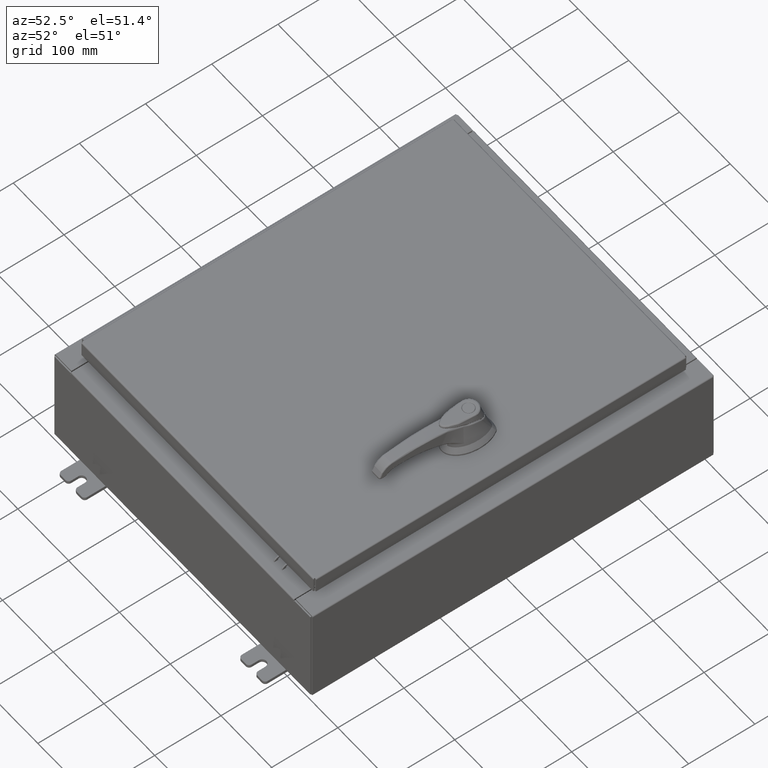
[diagram: clean part render]
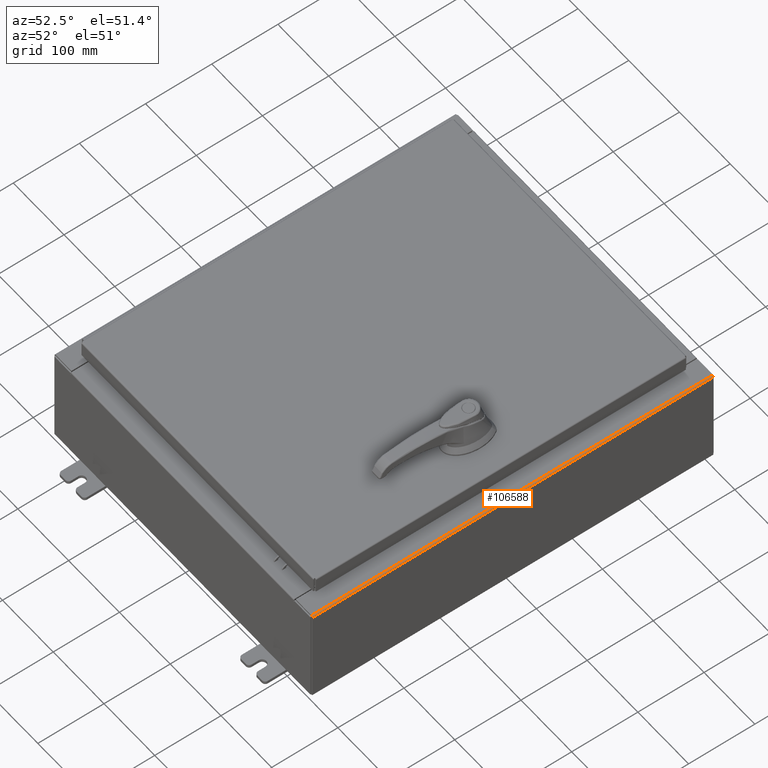
[diagram: same view with one face highlighted and labeled with its STEP entity id]
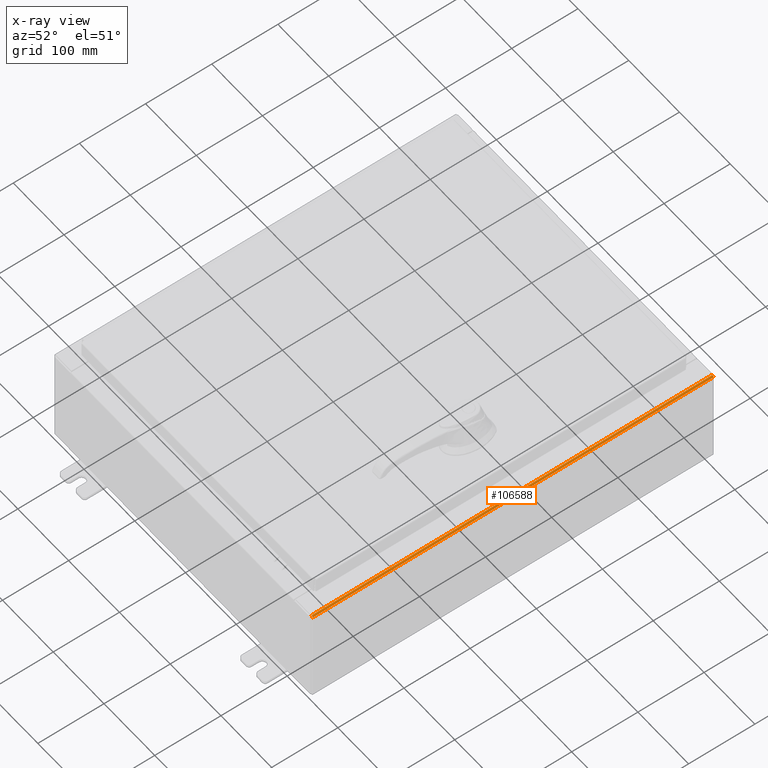
[diagram: x-ray of the same camera — body ghosted, the highlighted face saturated]
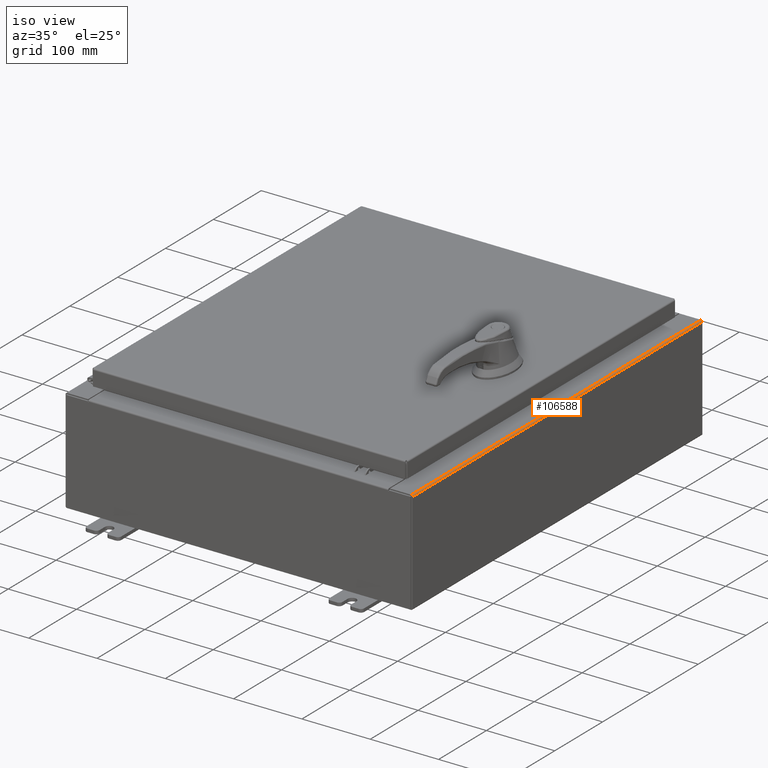
[diagram: same view with one face highlighted and labeled with its STEP entity id]
A machine part, auxiliary view. The second image highlights one B-rep face of the part: STEP entity #106588.
The next image is the same camera in x-ray: the body ghosted, the highlighted face saturated — about 0% of this face is hidden behind the body in this view.
A second angle (iso view) of the same face is appended — the face is thin or edge-on in the first view.
In plain terms, the highlighted cylindrical surface (edge-blend (fillet) strip) has radius 2.2276 mm, axis along (0, 1, 0).
Its self-contained STEP definition (entity closure, byte-faithful):
#6751 = LINE ( 'NONE', #26141, #32528 ) ;
#6752 = AXIS2_PLACEMENT_3D ( 'NONE', #76110, #101969, #58688 ) ;
#7705 = CARTESIAN_POINT ( 'NONE',  ( 9.912300000000019700, -11.92530000000000000, 5.837600000000001000 ) ) ;
#8483 = AXIS2_PLACEMENT_3D ( 'NONE', #50629, #111252, #59347 ) ;
#9033 = VERTEX_POINT ( 'NONE', #74383 ) ;
#10187 = CARTESIAN_POINT ( 'NONE',  ( 10.00000000000002000, -11.92530000000000000, 5.837600000000001000 ) ) ;
#11438 = EDGE_CURVE ( 'NONE', #51249, #9033, #6751, .T. ) ;
#13152 = ORIENTED_EDGE ( 'NONE', *, *, #11438, .T. ) ;
#15302 = CARTESIAN_POINT ( 'NONE',  ( 10.00000000000002000, 11.92530000000000000, 5.837600000000001000 ) ) ;
#16457 = DIRECTION ( 'NONE',  ( 0.0000000000000000000, 0.0000000000000000000, 1.000000000000000000 ) ) ;
#21455 = EDGE_CURVE ( 'NONE', #95572, #9033, #45227, .T. ) ;
#22824 = AXIS2_PLACEMENT_3D ( 'NONE', #7705, #68300, #16457 ) ;
#26141 = CARTESIAN_POINT ( 'NONE',  ( 9.912300000000019700, -11.92530000000000000, 5.925300000000001800 ) ) ;
#29350 = ORIENTED_EDGE ( 'NONE', *, *, #49193, .F. ) ;
#32528 = VECTOR ( 'NONE', #95520, 39.37007874015748100 ) ;
#38117 = CYLINDRICAL_SURFACE ( 'NONE', #6752, 0.08770000000000026400 ) ;
#40769 = FACE_OUTER_BOUND ( 'NONE', #95505, .T. ) ;
#45227 = CIRCLE ( 'NONE', #22824, 0.08770000000000026400 ) ;
#49193 = EDGE_CURVE ( 'NONE', #95367, #95572, #102051, .T. ) ;
#50629 = CARTESIAN_POINT ( 'NONE',  ( 9.912300000000019700, 11.92529999999999800, 5.837600000000001000 ) ) ;
#51249 = VERTEX_POINT ( 'NONE', #65974 ) ;
#56100 = ORIENTED_EDGE ( 'NONE', *, *, #59649, .F. ) ;
#57508 = ORIENTED_EDGE ( 'NONE', *, *, #21455, .F. ) ;
#58688 = DIRECTION ( 'NONE',  ( 0.0000000000000000000, 0.0000000000000000000, 1.000000000000000000 ) ) ;
#59347 = DIRECTION ( 'NONE',  ( 0.0000000000000000000, 0.0000000000000000000, 1.000000000000000000 ) ) ;
#59649 = EDGE_CURVE ( 'NONE', #51249, #95367, #102299, .T. ) ;
#65974 = CARTESIAN_POINT ( 'NONE',  ( 9.912300000000019700, 11.92529999999999800, 5.925300000000001800 ) ) ;
#66984 = CARTESIAN_POINT ( 'NONE',  ( 10.00000000000002000, 11.92529999999999800, 5.837600000000001000 ) ) ;
#68300 = DIRECTION ( 'NONE',  ( -0.0000000000000000000, -1.000000000000000000, -0.0000000000000000000 ) ) ;
#74383 = CARTESIAN_POINT ( 'NONE',  ( 9.912300000000019700, -11.92530000000000000, 5.925300000000001800 ) ) ;
#75839 = DIRECTION ( 'NONE',  ( -0.0000000000000000000, -1.000000000000000000, -0.0000000000000000000 ) ) ;
#76110 = CARTESIAN_POINT ( 'NONE',  ( 9.912300000000019700, 11.92530000000000000, 5.837600000000001000 ) ) ;
#78954 = VECTOR ( 'NONE', #75839, 39.37007874015748100 ) ;
#95367 = VERTEX_POINT ( 'NONE', #66984 ) ;
#95505 = EDGE_LOOP ( 'NONE', ( #29350, #56100, #13152, #57508 ) ) ;
#95520 = DIRECTION ( 'NONE',  ( -0.0000000000000000000, -1.000000000000000000, -0.0000000000000000000 ) ) ;
#95572 = VERTEX_POINT ( 'NONE', #10187 ) ;
#101969 = DIRECTION ( 'NONE',  ( 0.0000000000000000000, 1.000000000000000000, 0.0000000000000000000 ) ) ;
#102051 = LINE ( 'NONE', #15302, #78954 ) ;
#102299 = CIRCLE ( 'NONE', #8483, 0.08770000000000026400 ) ;
#106588 = ADVANCED_FACE ( 'NONE', ( #40769 ), #38117, .T. ) ;
#111252 = DIRECTION ( 'NONE',  ( 0.0000000000000000000, 1.000000000000000000, 0.0000000000000000000 ) ) ;